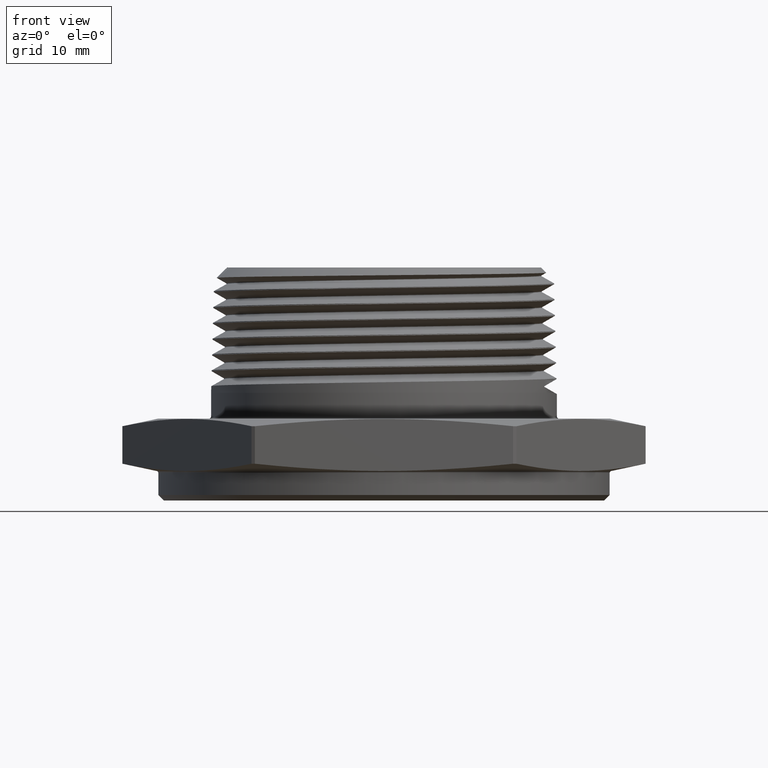
[diagram: clean part render]
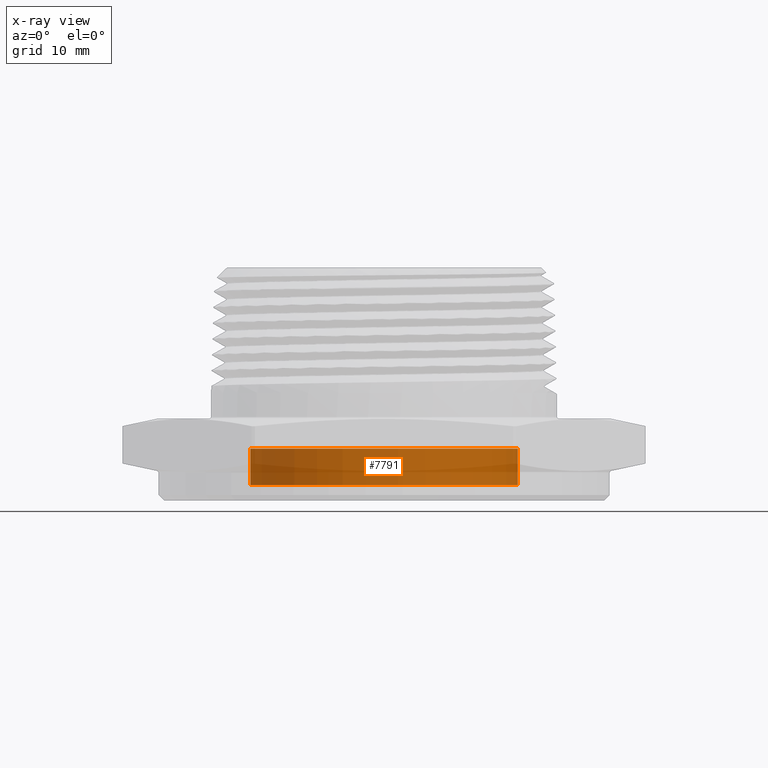
[diagram: x-ray — body ghosted, one internal face saturated and labeled with its STEP entity id]
A machine part, front view, then the same camera in x-ray: the body is ghosted and one INTERNAL B-rep face — a face not visible from any outside direction — is saturated and labeled: STEP entity #7791.
In plain terms, the highlighted cylindrical surface (partial cylindrical patch) has radius 18.669 mm, axis along (-0, -0, -1).
Its self-contained STEP definition (entity closure, byte-faithful):
#833 = LINE ( 'NONE', #7202, #836 ) ;
#836 = VECTOR ( 'NONE', #7203, 39.37007874015748100 ) ;
#837 = CIRCLE ( 'NONE', #7525, 0.7350000000000001000 ) ;
#838 = LINE ( 'NONE', #7204, #840 ) ;
#840 = VECTOR ( 'NONE', #7205, 39.37007874015748100 ) ;
#841 = CIRCLE ( 'NONE', #7526, 0.7350000000000001000 ) ;
#858 = FACE_OUTER_BOUND ( 'NONE', #5331, .T. ) ;
#868 = CYLINDRICAL_SURFACE ( 'NONE', #7538, 0.7350000000000001000 ) ;
#3054 = DIRECTION ( 'NONE',  ( -1.000000000000000000, 0.0000000000000000000, 0.0000000000000000000 ) ) ;
#3055 = CARTESIAN_POINT ( 'NONE',  ( 1.224646799147350700E-018, 0.0000000000000000000, 0.1240000000000000700 ) ) ;
#3056 = DIRECTION ( 'NONE',  ( -0.0000000000000000000, -0.0000000000000000000, -1.000000000000000000 ) ) ;
#3867 = ORIENTED_EDGE ( 'NONE', *, *, #7711, .T. ) ;
#3868 = ORIENTED_EDGE ( 'NONE', *, *, #7709, .T. ) ;
#3869 = ORIENTED_EDGE ( 'NONE', *, *, #7710, .F. ) ;
#3870 = ORIENTED_EDGE ( 'NONE', *, *, #7706, .F. ) ;
#5331 = EDGE_LOOP ( 'NONE', ( #3870, #3869, #3868, #3867 ) ) ;
#6133 = VERTEX_POINT ( 'NONE', #6733 ) ;
#6142 = VERTEX_POINT ( 'NONE', #6716 ) ;
#6167 = VERTEX_POINT ( 'NONE', #6709 ) ;
#6190 = VERTEX_POINT ( 'NONE', #6706 ) ;
#6706 = CARTESIAN_POINT ( 'NONE',  ( -0.7350000000000001000, 0.0000000000000000000, -0.07599999999999995600 ) ) ;
#6709 = CARTESIAN_POINT ( 'NONE',  ( 0.7350000000000001000, 9.001153973733047100E-017, -0.07599999999999995600 ) ) ;
#6716 = CARTESIAN_POINT ( 'NONE',  ( 0.7350000000000001000, 9.001153973733047100E-017, 0.1240000000000000700 ) ) ;
#6733 = CARTESIAN_POINT ( 'NONE',  ( -0.7350000000000001000, 0.0000000000000000000, 0.1240000000000000700 ) ) ;
#7202 = CARTESIAN_POINT ( 'NONE',  ( 0.7350000000000001000, 9.001153973733047100E-017, 0.1240000000000000700 ) ) ;
#7203 = DIRECTION ( 'NONE',  ( -0.0000000000000000000, -0.0000000000000000000, -1.000000000000000000 ) ) ;
#7204 = CARTESIAN_POINT ( 'NONE',  ( -0.7350000000000001000, 0.0000000000000000000, 0.1240000000000000700 ) ) ;
#7205 = DIRECTION ( 'NONE',  ( -0.0000000000000000000, -0.0000000000000000000, -1.000000000000000000 ) ) ;
#7215 = CARTESIAN_POINT ( 'NONE',  ( 1.224646799147350700E-018, 0.0000000000000000000, 0.1240000000000000700 ) ) ;
#7216 = DIRECTION ( 'NONE',  ( 0.0000000000000000000, 0.0000000000000000000, 1.000000000000000000 ) ) ;
#7217 = DIRECTION ( 'NONE',  ( 1.000000000000000000, 0.0000000000000000000, 0.0000000000000000000 ) ) ;
#7218 = CARTESIAN_POINT ( 'NONE',  ( 1.224646799147350700E-018, 0.0000000000000000000, -0.07599999999999995600 ) ) ;
#7219 = DIRECTION ( 'NONE',  ( 0.0000000000000000000, 0.0000000000000000000, 1.000000000000000000 ) ) ;
#7220 = DIRECTION ( 'NONE',  ( 1.000000000000000000, 0.0000000000000000000, 0.0000000000000000000 ) ) ;
#7525 = AXIS2_PLACEMENT_3D ( 'NONE', #7215, #7216, #7217 ) ;
#7526 = AXIS2_PLACEMENT_3D ( 'NONE', #7218, #7219, #7220 ) ;
#7538 = AXIS2_PLACEMENT_3D ( 'NONE', #3055, #3056, #3054 ) ;
#7706 = EDGE_CURVE ( 'NONE', #6142, #6167, #833, .T. ) ;
#7709 = EDGE_CURVE ( 'NONE', #6133, #6190, #838, .T. ) ;
#7710 = EDGE_CURVE ( 'NONE', #6133, #6142, #837, .T. ) ;
#7711 = EDGE_CURVE ( 'NONE', #6190, #6167, #841, .T. ) ;
#7791 = ADVANCED_FACE ( 'NONE', ( #858 ), #868, .T. ) ;